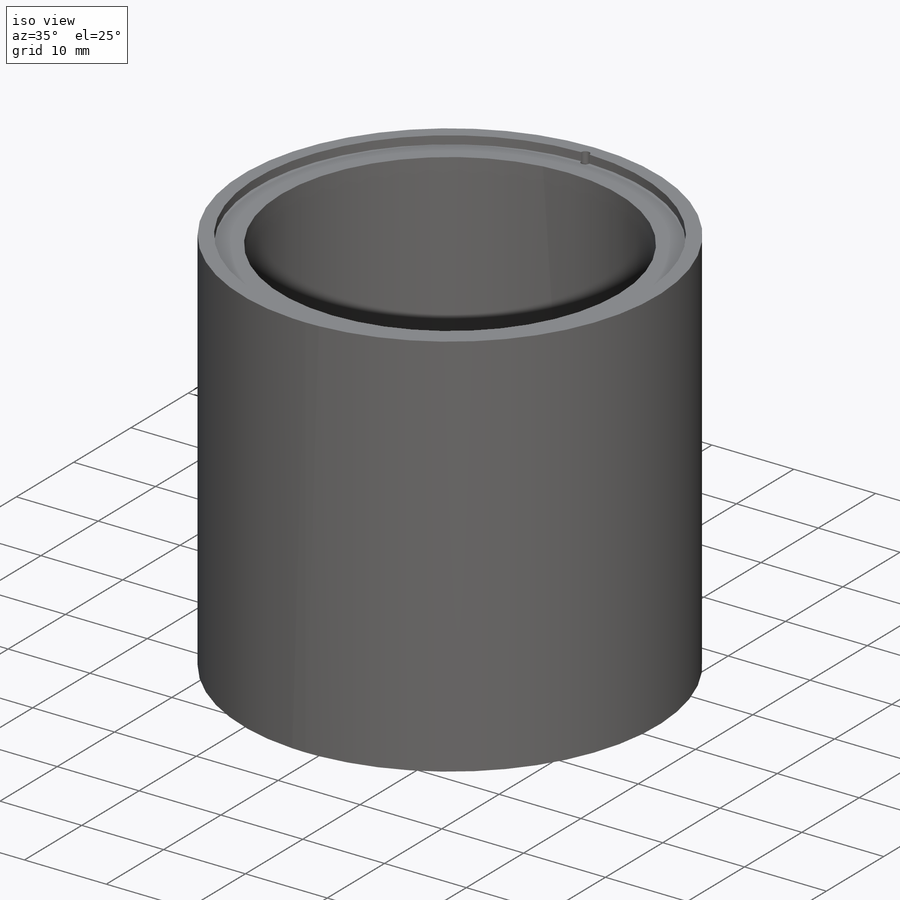
[diagram: iso view]
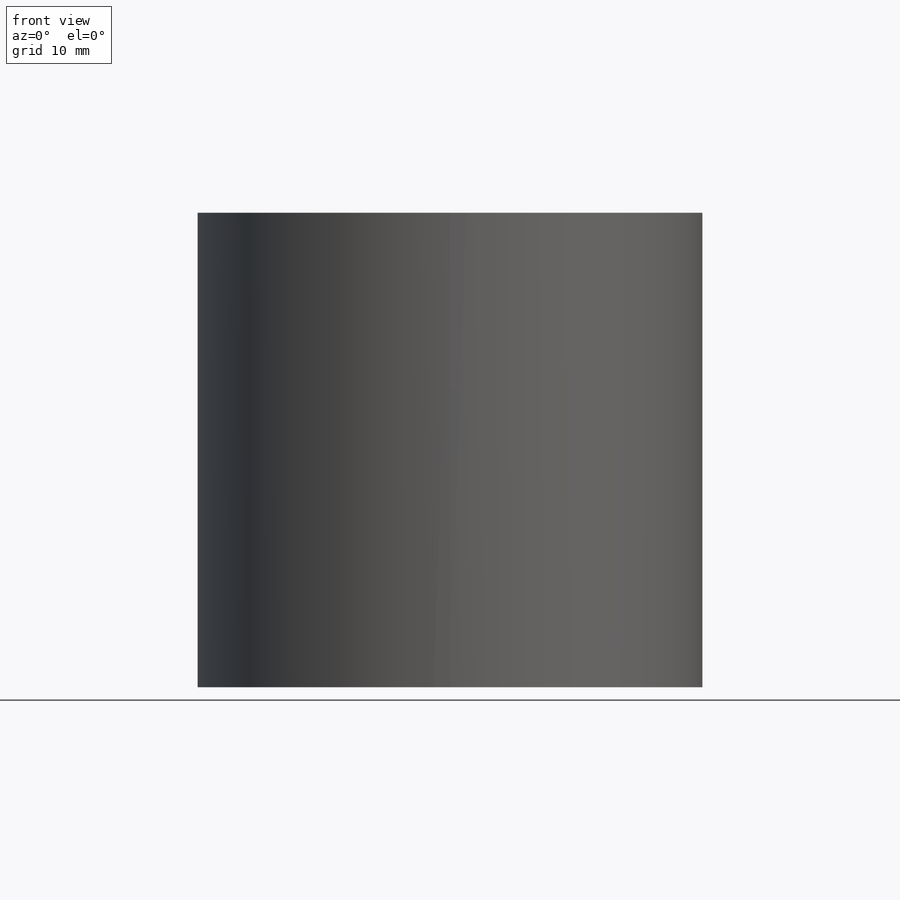
[diagram: front view]
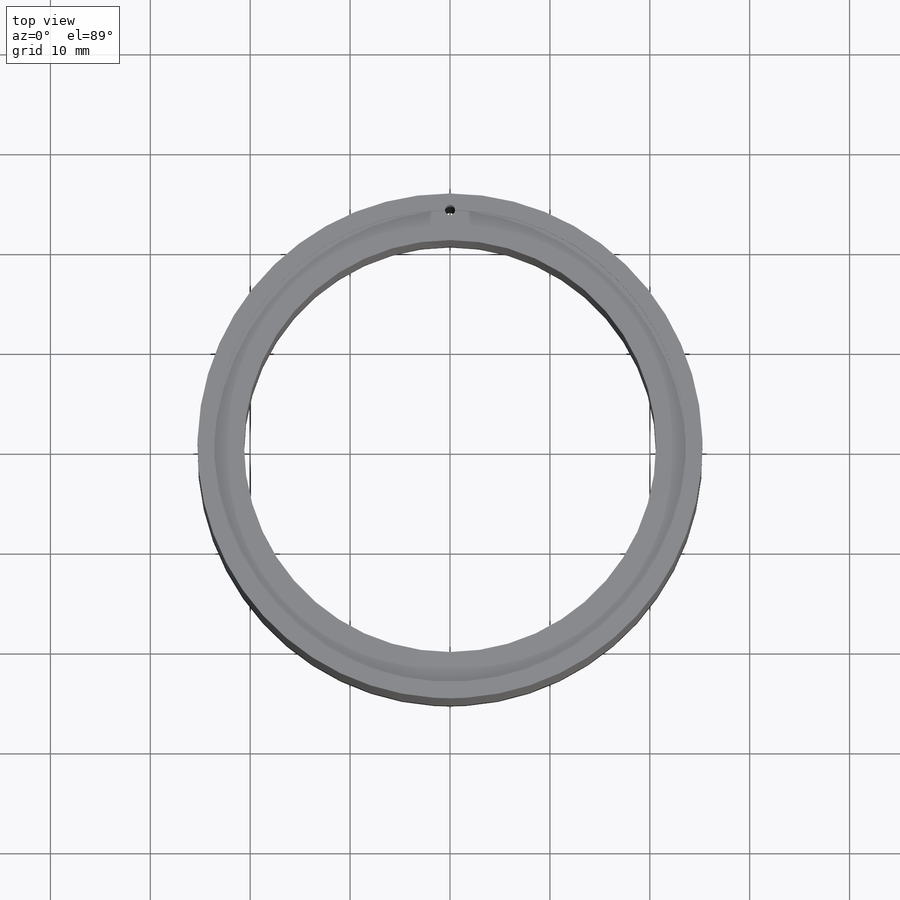
[diagram: top view]
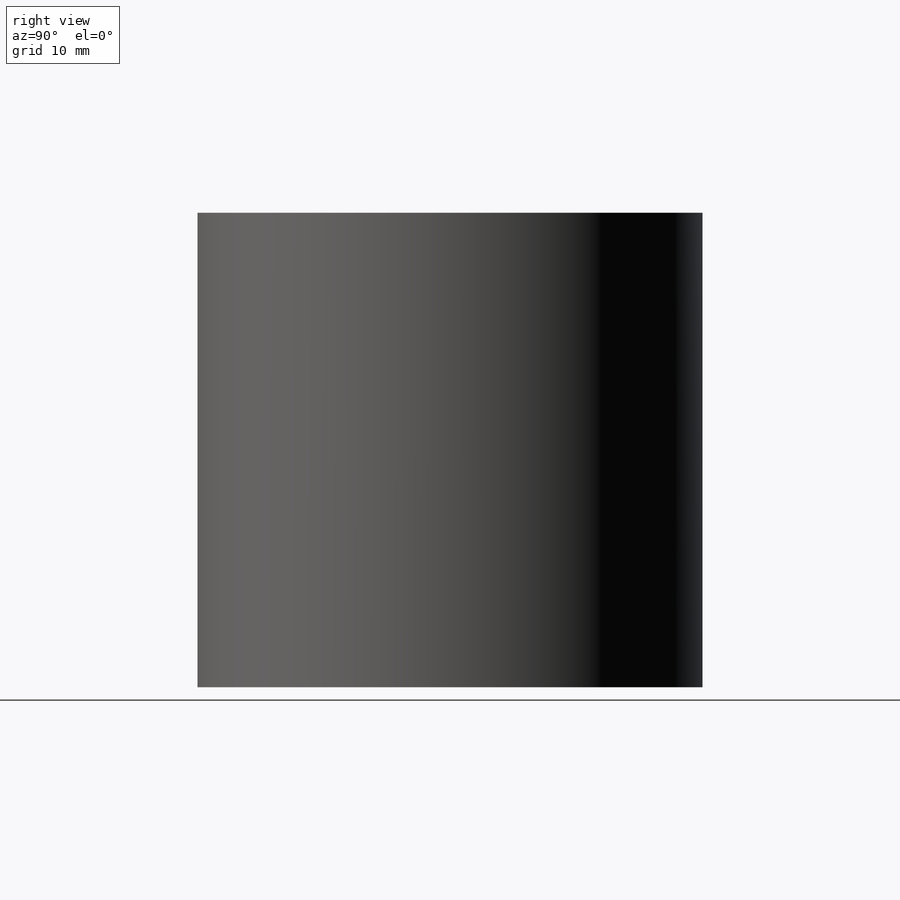
[diagram: right view]
SOLIDWORKS PART (.sldprt)
format: sldprt  version: not decoded by parser v0  size: 149,504 bytes
history: native  units: mm
features: sketch x4, cut_extrude x3, material x1, extrude x1 (+11 scaffold rows collapsed)
feature tree (20):
  scaffold x11  (default folders/planes/origin — collapsed)
  material  "Material <not specified>"
  sketch  "Sketch1"  dims[D1=~24.525301mm]
  extrude  "Boss-Extrude1"  Depth=45mm
  sketch  "Sketch2"  dims[D1=23.625mm]
  cut_extrude  "Cut-Extrude1"  Depth=3.5mm
  sketch  "Sketch3"  dims[D1=22.625mm]
  cut_extrude  "Cut-Extrude2"  Depth=1mm
  sketch  "Sketch4"  dims[D1=~0.66217mm]
  cut_extrude  "Cut-Extrude3"  Depth=47.5mm
decode coverage: 8 of 8 modeling features carry decoded parameters
note: ~ marks probable driven/reference dimensions
note: suppression state not decoded; provenance and decode notes live in map.json
